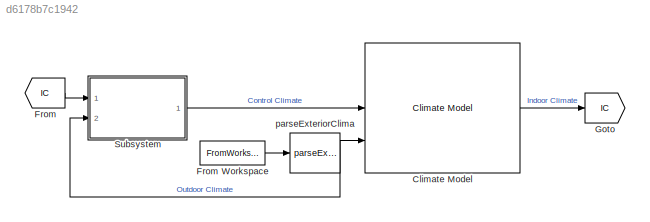
MODEL slx_d6178b7c1942
KIND model
CONFIG AbsTol = auto
CONFIG EnableMultiTasking = off
CONFIG FixedStep = auto
CONFIG MaxStep = auto
CONFIG MinStep = auto
CONFIG RelTol = 1e-3
CONFIG SampleTimeConstraint = Unconstrained
CONFIG SolverName = VariableStepAuto
CONFIG StartTime = 0.0
CONFIG StopTime = 10
BLOCK [Reference] Climate Model  REF=HORTISIM/Climate/Models/Climate Model
  Ports = [3, 1]
  SourceBlock = HORTISIM/Climate/Models/Climate Model
  SourceProductName = Horti Simulator
BLOCK [From] From
  GotoTag = IC
BLOCK [FromWorkspace] From Workspace
  VariableName = climate
BLOCK [Goto] Goto
  GotoTag = IC
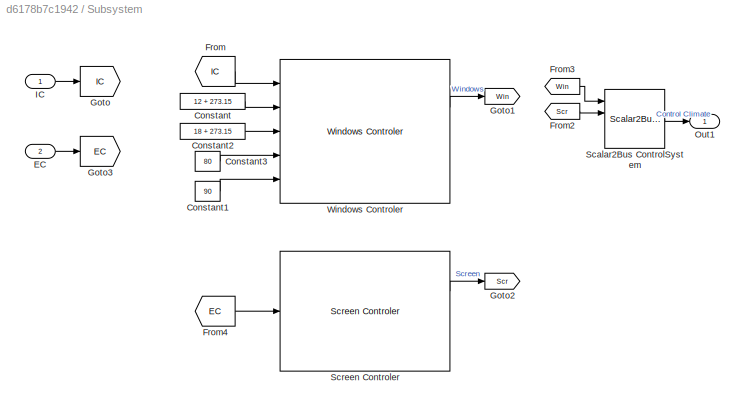
BLOCK [SubSystem] Subsystem
  Ports = [2, 1]
  RequestExecContextInheritance = off
BLOCK [Constant] Subsystem/Constant
  Value = 12 + 273.15
BLOCK [Constant] Subsystem/Constant1
  Value = 90
BLOCK [Constant] Subsystem/Constant2
  Value = 18 + 273.15
BLOCK [Constant] Subsystem/Constant3
  Value = 80
BLOCK [Inport] Subsystem/EC
  Port = 2
BLOCK [From] Subsystem/From
  GotoTag = IC
BLOCK [From] Subsystem/From2
  GotoTag = Scr
BLOCK [From] Subsystem/From3
  GotoTag = Win
BLOCK [From] Subsystem/From4
  GotoTag = EC
BLOCK [Goto] Subsystem/Goto
  GotoTag = IC
BLOCK [Goto] Subsystem/Goto1
  GotoTag = Win
BLOCK [Goto] Subsystem/Goto2
  GotoTag = Scr
BLOCK [Goto] Subsystem/Goto3
  GotoTag = EC
BLOCK [Inport] Subsystem/IC
BLOCK [Outport] Subsystem/Out1
BLOCK [Reference] Subsystem/Scalar2Bus ControlSystem  REF=HORTISIM/Other 
Functions/Scalar2Bus 
Control Climate
  Ports = [4, 1]
  SourceBlock = HORTISIM/Other \nFunctions/Scalar2Bus \nControl Climate
  SourceProductName = Horti Simulator
  SourceType = SubSystem
BLOCK [Reference] Subsystem/Screen Controler  REF=HORTISIM/Climate/Controls/Screen Controler
  NameLocation = top
  Ports = [1, 2]
  SourceBlock = HORTISIM/Climate/Controls/Screen Controler
  SourceProductName = Horti Simulator
BLOCK [Reference] Subsystem/Windows Controler  REF=HORTISIM/Climate/Controls/Windows Controler
  NameLocation = top
  Ports = [5, 2]
  SourceBlock = HORTISIM/Climate/Controls/Windows Controler
  SourceProductName = Horti Simulator
BLOCK [Reference] parseExteriorClima  REF=HORTISIM/Other 
Functions/parseExteriorClima
  Ports = [1, 1]
  SourceBlock = HORTISIM/Other \nFunctions/parseExteriorClima
  SourceProductName = Horti Simulator
  SourceType = SubSystem
LINE Climate Model:1 -> Goto:1
LINE From Workspace:1 -> parseExteriorClima:1
LINE From:1 -> Subsystem:1
LINE Subsystem/Constant1:1 -> Subsystem/Windows Controler:5
LINE Subsystem/Constant2:1 -> Subsystem/Windows Controler:3
LINE Subsystem/Constant3:1 -> Subsystem/Windows Controler:4
LINE Subsystem/Constant:1 -> Subsystem/Windows Controler:2
LINE Subsystem/EC:1 -> Subsystem/Goto3:1
LINE Subsystem/From2:1 -> Subsystem/Scalar2Bus ControlSystem:2
LINE Subsystem/From3:1 -> Subsystem/Scalar2Bus ControlSystem:1
LINE Subsystem/From4:1 -> Subsystem/Screen Controler:1
LINE Subsystem/From:1 -> Subsystem/Windows Controler:1
LINE Subsystem/IC:1 -> Subsystem/Goto:1
LINE Subsystem/Scalar2Bus ControlSystem:1 -> Subsystem/Out1:1
LINE Subsystem/Screen Controler:1 -> Subsystem/Goto2:1
LINE Subsystem/Windows Controler:1 -> Subsystem/Goto1:1
LINE Subsystem:1 -> Climate Model:2
NET parseExteriorClima:1 -> Climate Model:3, Subsystem:2
note: NET lines group one-source signal fan-out (src -> all destinations, sorted); 1:1 wires keep LINE
